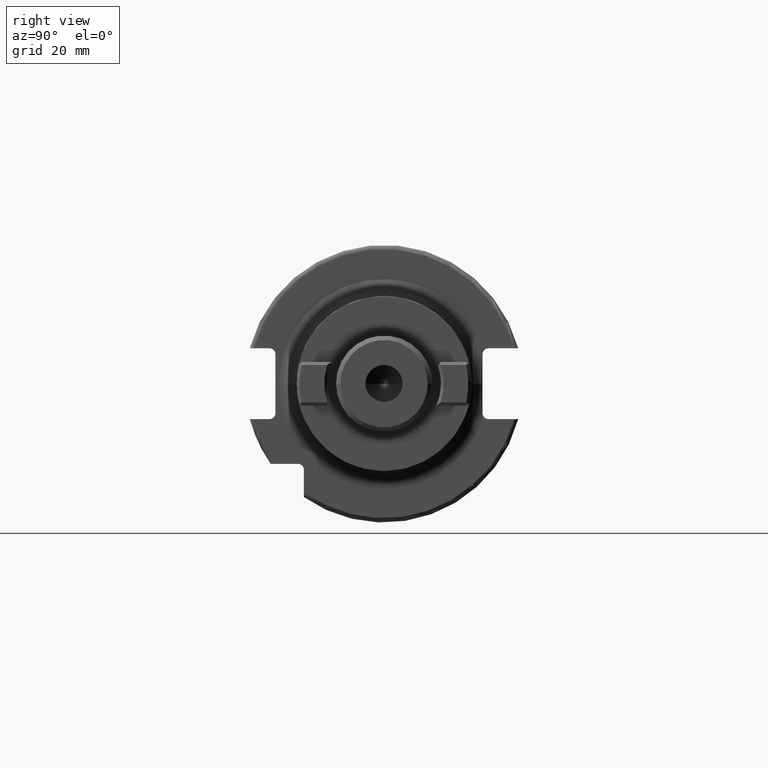
[diagram: clean part render]
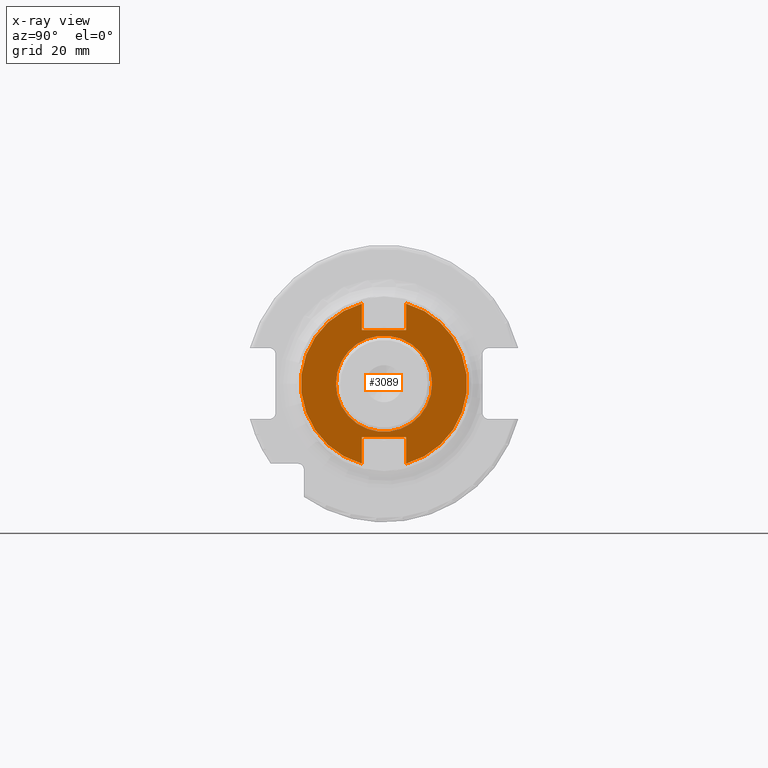
[diagram: x-ray — body ghosted, one internal face saturated and labeled with its STEP entity id]
A machine part, right view, then the same camera in x-ray: the body is ghosted and one INTERNAL B-rep face — a face not visible from any outside direction — is saturated and labeled: STEP entity #3089.
In plain terms, the highlighted planar face has unit normal (1, 0, 0).
Its self-contained STEP definition (entity closure, byte-faithful):
#1058=CARTESIAN_POINT('',(4.3E1,-5.05E0,1.831659084E1));
#1060=CARTESIAN_POINT('',(4.3E1,0.E0,0.E0));
#1061=DIRECTION('',(1.E0,0.E0,0.E0));
#1062=DIRECTION('',(0.E0,-2.657894736842E-1,9.640310968421E-1));
#1063=AXIS2_PLACEMENT_3D('',#1060,#1061,#1062);
#1076=CARTESIAN_POINT('',(4.3E1,0.E0,0.E0));
#1077=DIRECTION('',(1.E0,0.E0,0.E0));
#1078=DIRECTION('',(0.E0,2.657894736842E-1,-9.640310968421E-1));
#1079=AXIS2_PLACEMENT_3D('',#1076,#1077,#1078);
#1081=CARTESIAN_POINT('',(4.3E1,5.05E0,1.831659084E1));
#1113=CARTESIAN_POINT('',(4.3E1,0.E0,0.E0));
#1114=DIRECTION('',(1.E0,0.E0,0.E0));
#1115=DIRECTION('',(0.E0,1.E0,0.E0));
#1116=AXIS2_PLACEMENT_3D('',#1113,#1114,#1115);
#1118=CARTESIAN_POINT('',(4.3E1,0.E0,0.E0));
#1119=DIRECTION('',(-1.E0,0.E0,0.E0));
#1120=DIRECTION('',(0.E0,1.E0,0.E0));
#1121=AXIS2_PLACEMENT_3D('',#1118,#1119,#1120);
#1123=DIRECTION('',(0.E0,1.E0,0.E0));
#1124=VECTOR('',#1123,1.01E1);
#1125=CARTESIAN_POINT('',(4.3E1,-5.05E0,-1.225E1));
#1126=LINE('',#1125,#1124);
#1127=DIRECTION('',(0.E0,0.E0,1.E0));
#1128=VECTOR('',#1127,6.066590840001E0);
#1129=CARTESIAN_POINT('',(4.3E1,-5.05E0,-1.831659084E1));
#1130=LINE('',#1129,#1128);
#1131=DIRECTION('',(0.E0,0.E0,-1.E0));
#1132=VECTOR('',#1131,6.066590840001E0);
#1133=CARTESIAN_POINT('',(4.3E1,-5.05E0,1.831659084E1));
#1134=LINE('',#1133,#1132);
#1135=DIRECTION('',(0.E0,1.E0,0.E0));
#1136=VECTOR('',#1135,1.01E1);
#1137=CARTESIAN_POINT('',(4.3E1,-5.05E0,1.225E1));
#1138=LINE('',#1137,#1136);
#1139=DIRECTION('',(0.E0,0.E0,-1.E0));
#1140=VECTOR('',#1139,6.066590840001E0);
#1141=CARTESIAN_POINT('',(4.3E1,5.05E0,1.831659084E1));
#1142=LINE('',#1141,#1140);
#1143=DIRECTION('',(0.E0,0.E0,1.E0));
#1144=VECTOR('',#1143,6.066590840001E0);
#1145=CARTESIAN_POINT('',(4.3E1,5.05E0,-1.831659084E1));
#1146=LINE('',#1145,#1144);
#1834=CARTESIAN_POINT('',(4.3E1,1.1E1,0.E0));
#1835=CARTESIAN_POINT('',(4.3E1,-1.1E1,0.E0));
#1836=VERTEX_POINT('',#1834);
#1837=VERTEX_POINT('',#1835);
#1869=VERTEX_POINT('',#1058);
#1870=VERTEX_POINT('',#1081);
#1871=CARTESIAN_POINT('',(4.3E1,-5.05E0,1.225E1));
#1872=CARTESIAN_POINT('',(4.3E1,5.05E0,1.225E1));
#1873=VERTEX_POINT('',#1871);
#1874=VERTEX_POINT('',#1872);
#1883=CARTESIAN_POINT('',(4.3E1,-5.05E0,-1.225E1));
#1884=VERTEX_POINT('',#1883);
#1885=CARTESIAN_POINT('',(4.3E1,5.05E0,-1.225E1));
#1886=VERTEX_POINT('',#1885);
#1891=CARTESIAN_POINT('',(4.3E1,-5.05E0,-1.831659084E1));
#1892=VERTEX_POINT('',#1891);
#1893=CARTESIAN_POINT('',(4.3E1,5.05E0,-1.831659084E1));
#1894=VERTEX_POINT('',#1893);
#3066=CARTESIAN_POINT('',(4.3E1,0.E0,0.E0));
#3067=DIRECTION('',(1.E0,0.E0,0.E0));
#3068=DIRECTION('',(0.E0,-1.E0,0.E0));
#3069=AXIS2_PLACEMENT_3D('',#3066,#3067,#3068);
#3070=PLANE('',#3069);
#3071=ORIENTED_EDGE('',*,*,#3059,.F.);
#3072=ORIENTED_EDGE('',*,*,#3015,.F.);
#3073=ORIENTED_EDGE('',*,*,#2984,.F.);
#3075=ORIENTED_EDGE('',*,*,#3074,.T.);
#3077=ORIENTED_EDGE('',*,*,#3076,.T.);
#3078=ORIENTED_EDGE('',*,*,#2964,.F.);
#3079=ORIENTED_EDGE('',*,*,#2996,.F.);
#3080=ORIENTED_EDGE('',*,*,#3045,.T.);
#3081=EDGE_LOOP('',(#3071,#3072,#3073,#3075,#3077,#3078,#3079,#3080));
#3082=FACE_OUTER_BOUND('',#3081,.F.);
#3084=ORIENTED_EDGE('',*,*,#3083,.T.);
#3086=ORIENTED_EDGE('',*,*,#3085,.F.);
#3087=EDGE_LOOP('',(#3084,#3086));
#3088=FACE_BOUND('',#3087,.F.);
#3089=ADVANCED_FACE('',(#3082,#3088),#3070,.T.);
#1064=CIRCLE('',#1063,1.9E1);
#1080=CIRCLE('',#1079,1.9E1);
#1117=CIRCLE('',#1116,1.1E1);
#1122=CIRCLE('',#1121,1.1E1);
#2964=EDGE_CURVE('',#1870,#1874,#1142,.T.);
#2984=EDGE_CURVE('',#1869,#1892,#1064,.T.);
#2996=EDGE_CURVE('',#1894,#1870,#1080,.T.);
#3015=EDGE_CURVE('',#1892,#1884,#1130,.T.);
#3045=EDGE_CURVE('',#1894,#1886,#1146,.T.);
#3059=EDGE_CURVE('',#1884,#1886,#1126,.T.);
#3074=EDGE_CURVE('',#1869,#1873,#1134,.T.);
#3076=EDGE_CURVE('',#1873,#1874,#1138,.T.);
#3083=EDGE_CURVE('',#1836,#1837,#1117,.T.);
#3085=EDGE_CURVE('',#1836,#1837,#1122,.T.);